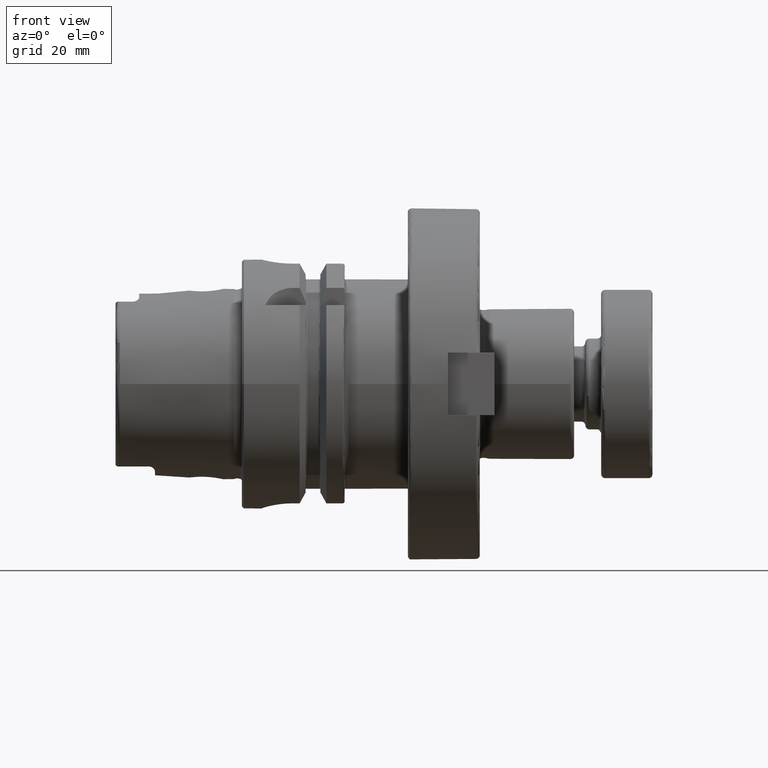
[diagram: clean part render]
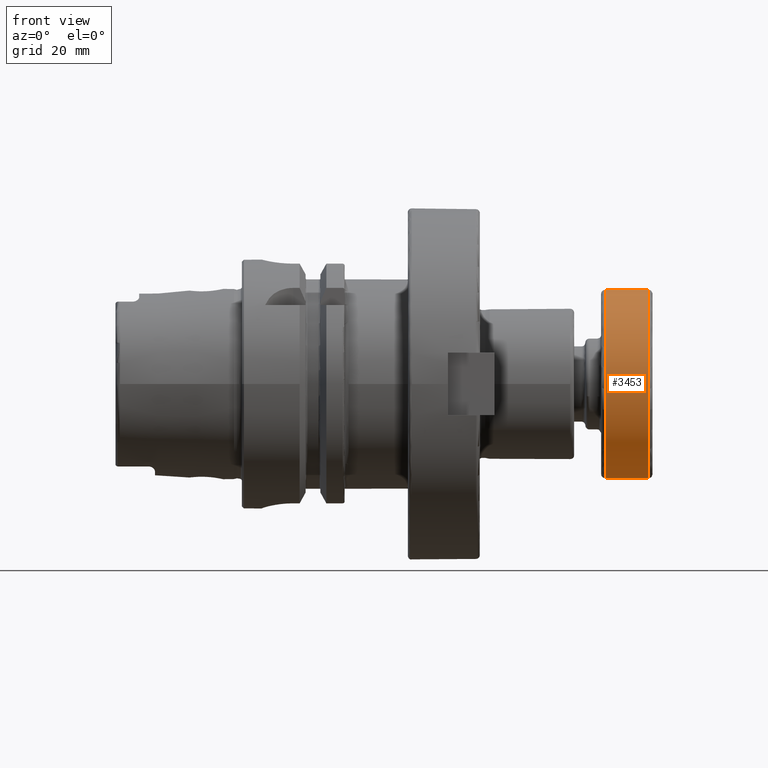
[diagram: same view with one face highlighted and labeled with its STEP entity id]
A machine part, front view. The second image highlights one B-rep face of the part: STEP entity #3453.
In plain terms, the highlighted cylindrical surface (bore or boss wall) has radius 23.85 mm, axis along (-1, -0, -0).
Its self-contained STEP definition (entity closure, byte-faithful):
#195=CYLINDRICAL_SURFACE('',#3962,23.85);
#420=CIRCLE('',#3960,23.85);
#421=CIRCLE('',#3961,23.85);
#422=CIRCLE('',#3963,23.85);
#423=CIRCLE('',#3964,23.85);
#618=FACE_OUTER_BOUND('',#841,.T.);
#841=EDGE_LOOP('',(#3073,#3074,#3075,#3076,#3077,#3078));
#1044=LINE('',#7045,#1243);
#1243=VECTOR('',#4935,23.85);
#1629=VERTEX_POINT('',#7038);
#1630=VERTEX_POINT('',#7040);
#1631=VERTEX_POINT('',#7044);
#1632=VERTEX_POINT('',#7046);
#2119=EDGE_CURVE('',#1629,#1630,#420,.T.);
#2120=EDGE_CURVE('',#1630,#1629,#421,.T.);
#2121=EDGE_CURVE('',#1630,#1631,#1044,.T.);
#2122=EDGE_CURVE('',#1632,#1631,#422,.T.);
#2123=EDGE_CURVE('',#1631,#1632,#423,.T.);
#3073=ORIENTED_EDGE('',*,*,#2120,.F.);
#3074=ORIENTED_EDGE('',*,*,#2121,.T.);
#3075=ORIENTED_EDGE('',*,*,#2122,.F.);
#3076=ORIENTED_EDGE('',*,*,#2123,.F.);
#3077=ORIENTED_EDGE('',*,*,#2121,.F.);
#3078=ORIENTED_EDGE('',*,*,#2119,.F.);
#3453=ADVANCED_FACE('',(#618),#195,.T.);
#3960=AXIS2_PLACEMENT_3D('',#7041,#4929,#4930);
#3961=AXIS2_PLACEMENT_3D('',#7042,#4931,#4932);
#3962=AXIS2_PLACEMENT_3D('',#7043,#4933,#4934);
#3963=AXIS2_PLACEMENT_3D('',#7047,#4936,#4937);
#3964=AXIS2_PLACEMENT_3D('',#7048,#4938,#4939);
#4929=DIRECTION('center_axis',(1.,0.,0.));
#4930=DIRECTION('ref_axis',(0.,-1.,1.83697019872103E-16));
#4931=DIRECTION('center_axis',(1.,0.,0.));
#4932=DIRECTION('ref_axis',(0.,-1.,1.83697019872103E-16));
#4933=DIRECTION('center_axis',(1.,0.,0.));
#4934=DIRECTION('ref_axis',(0.,1.,0.));
#4935=DIRECTION('',(-1.,0.,0.));
#4936=DIRECTION('center_axis',(-1.,0.,0.));
#4937=DIRECTION('ref_axis',(0.,-1.,1.83697019872103E-16));
#4938=DIRECTION('center_axis',(-1.,0.,0.));
#4939=DIRECTION('ref_axis',(0.,-1.,1.83697019872103E-16));
#7038=CARTESIAN_POINT('',(12.,-2.92078261596644E-15,23.85));
#7040=CARTESIAN_POINT('',(12.,-23.85,-2.92078261596644E-15));
#7041=CARTESIAN_POINT('Origin',(12.,0.,0.));
#7042=CARTESIAN_POINT('Origin',(12.,0.,0.));
#7043=CARTESIAN_POINT('Origin',(6.5,0.,0.));
#7044=CARTESIAN_POINT('',(1.,-23.85,-2.92078261596644E-15));
#7045=CARTESIAN_POINT('',(6.5,-23.85,-2.92078261596644E-15));
#7046=CARTESIAN_POINT('',(1.,-2.92078261596644E-15,23.85));
#7047=CARTESIAN_POINT('Origin',(1.,0.,0.));
#7048=CARTESIAN_POINT('Origin',(1.,0.,0.));